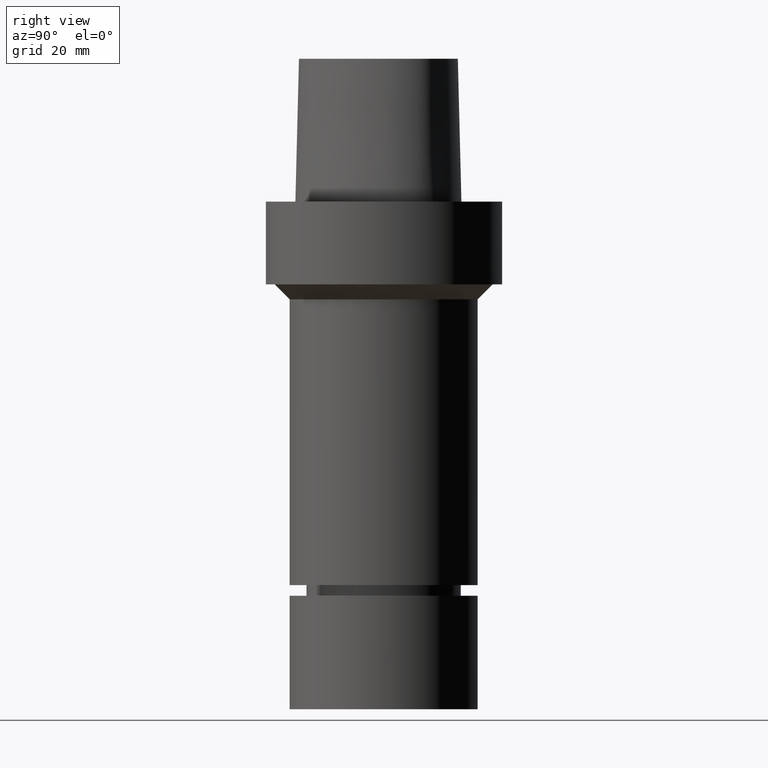
[diagram: clean part render]
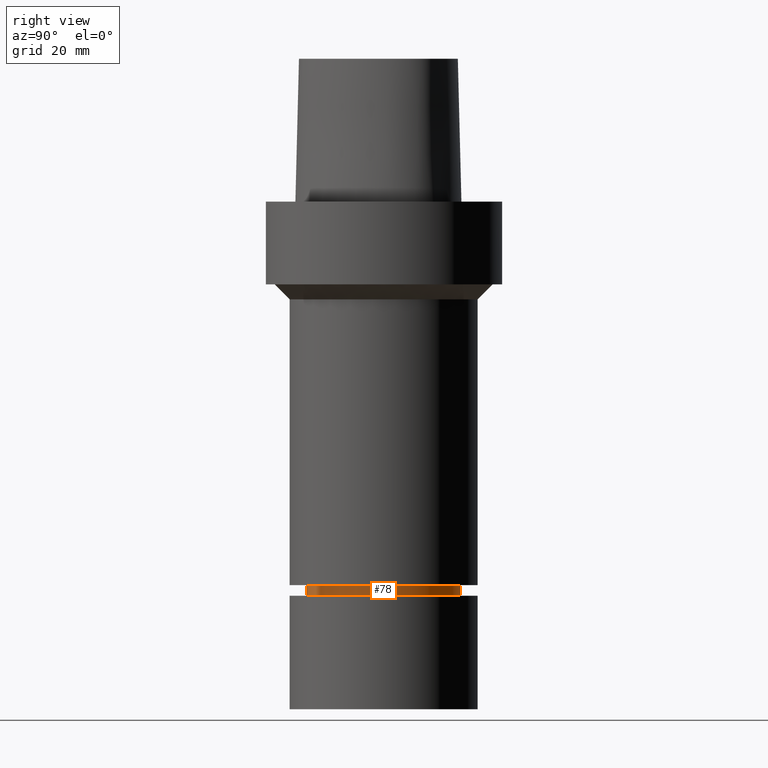
[diagram: same view with one face highlighted and labeled with its STEP entity id]
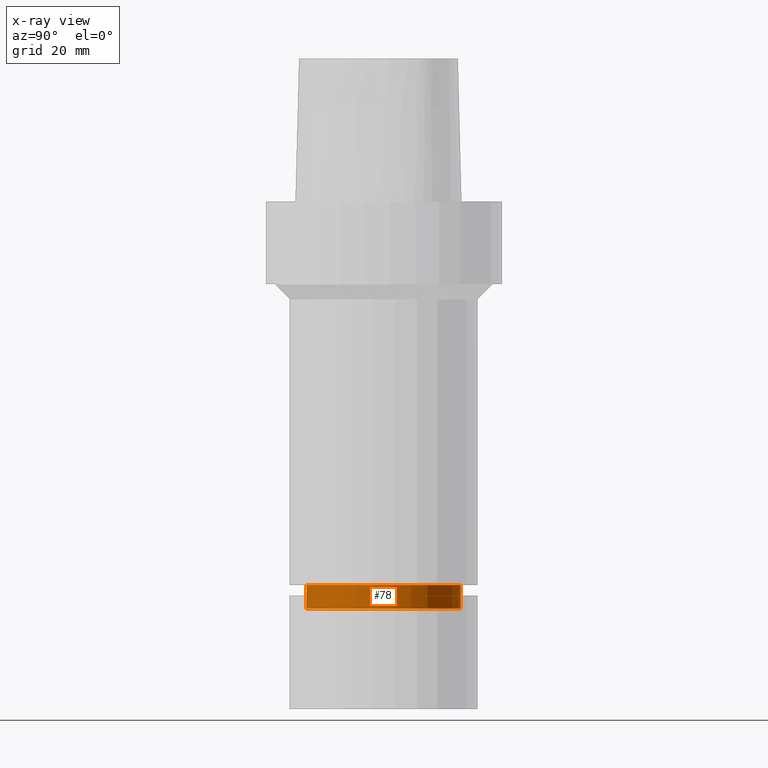
[diagram: x-ray of the same camera — body ghosted, the highlighted face saturated]
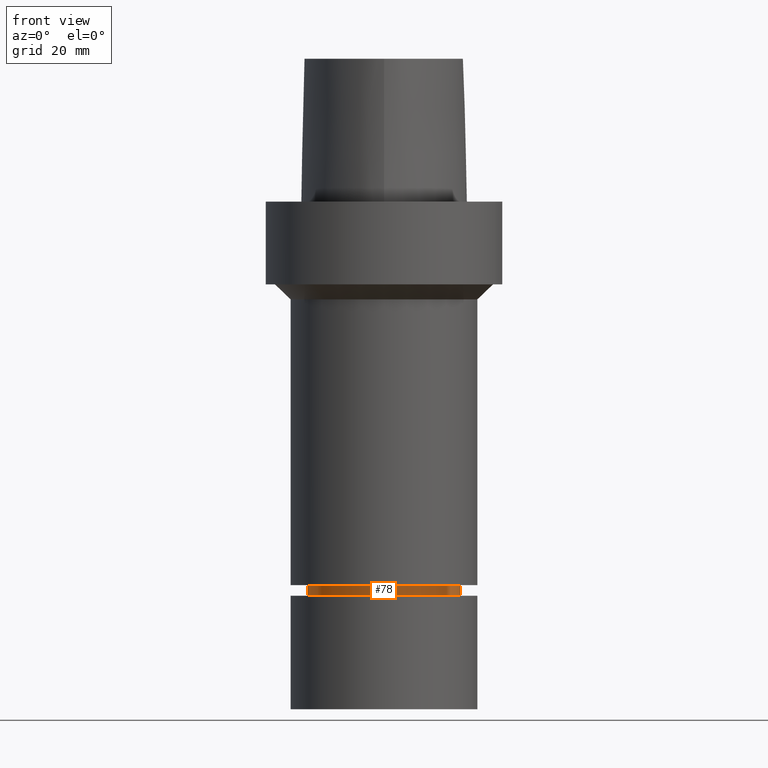
[diagram: same view with one face highlighted and labeled with its STEP entity id]
A machine part, right view. The second image highlights one B-rep face of the part: STEP entity #78.
The next image is the same camera in x-ray: the body ghosted, the highlighted face saturated — about 0% of this face is hidden behind the body in this view.
A second angle (front view) of the same face is appended — the face is thin or edge-on in the first view.
In plain terms, the highlighted cylindrical surface (bore or boss wall) has radius 20.5 mm, axis along (0, 0, -1).
Its self-contained STEP definition (entity closure, byte-faithful):
#78=ADVANCED_FACE('Unnamed[1]',(#200,#201),#202,.T.);
#82=EDGE_CURVE('Unnamed[1]',#208,#208,#209,.T.);
#145=EDGE_CURVE('Unnamed[1]',#302,#302,#303,.T.);
#200=FACE_BOUND('',#360,.T.);
#201=FACE_BOUND('',#361,.T.);
#202=CYLINDRICAL_SURFACE('',#362,20.4999999999961);
#208=VERTEX_POINT('',#371);
#209=CIRCLE('',#372,20.4999999999911);
#302=VERTEX_POINT('',#608);
#303=CIRCLE('',#609,20.5000000000012);
#360=EDGE_LOOP('',(#744));
#361=EDGE_LOOP('',(#745));
#362=AXIS2_PLACEMENT_3D('',#746,#747,#748);
#371=CARTESIAN_POINT('',(6.24570832399483E-015,20.4999999999911,-102.000157569404));
#372=AXIS2_PLACEMENT_3D('',#750,#751,#752);
#608=CARTESIAN_POINT('',(6.62604227973845E-015,20.5000000000012,-108.211482434801));
#609=AXIS2_PLACEMENT_3D('',#853,#854,#855);
#744=ORIENTED_EDGE('',*,*,#145,.F.);
#745=ORIENTED_EDGE('',*,*,#82,.T.);
#746=CARTESIAN_POINT('',(6.43587530186664E-015,1.28717506037333E-014,-105.105820002103));
#747=DIRECTION('',(6.12323399573677E-017,1.22464679914735E-016,-1.0));
#748=DIRECTION('',(-1.23259516440783E-032,1.0,1.22464679914735E-016));
#750=CARTESIAN_POINT('',(6.24570832399483E-015,1.24914166479896E-014,-102.000157569404));
#751=DIRECTION('',(6.12323399573677E-017,1.22464679914735E-016,-1.0));
#752=DIRECTION('',(-1.23259516440783E-032,1.0,1.22464679914735E-016));
#853=CARTESIAN_POINT('',(6.62604227973845E-015,1.32520845594769E-014,-108.211482434801));
#854=DIRECTION('',(6.12323399573677E-017,1.22464679914735E-016,-1.0));
#855=DIRECTION('',(-1.23259516440783E-032,1.0,1.22464679914735E-016));